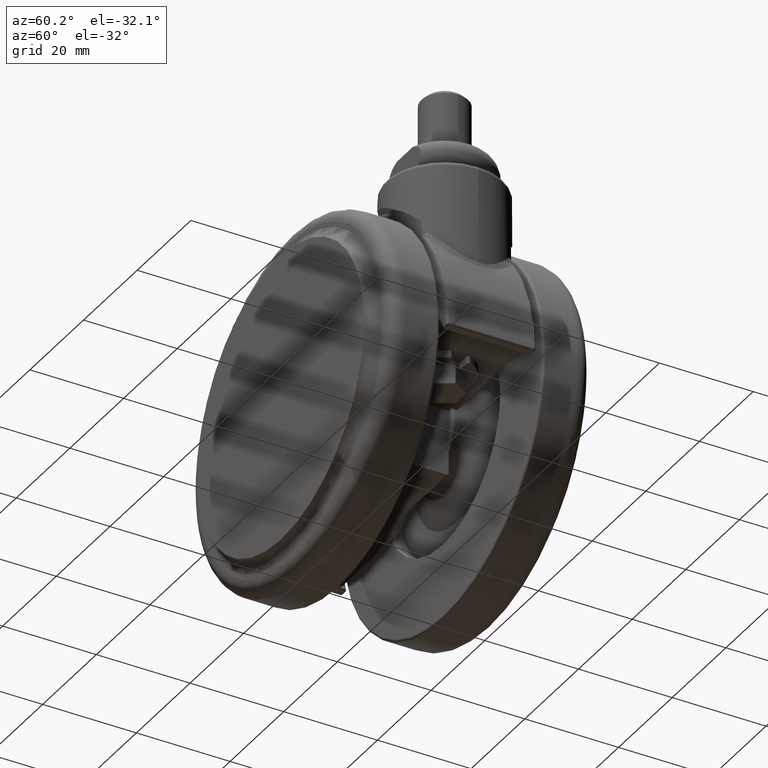
[diagram: clean part render]
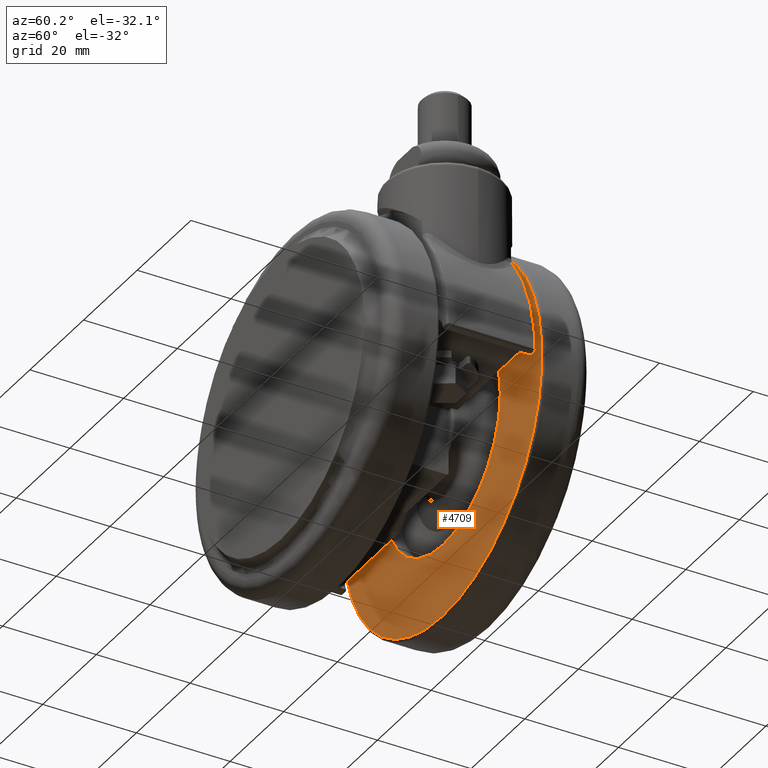
[diagram: same view with one face highlighted and labeled with its STEP entity id]
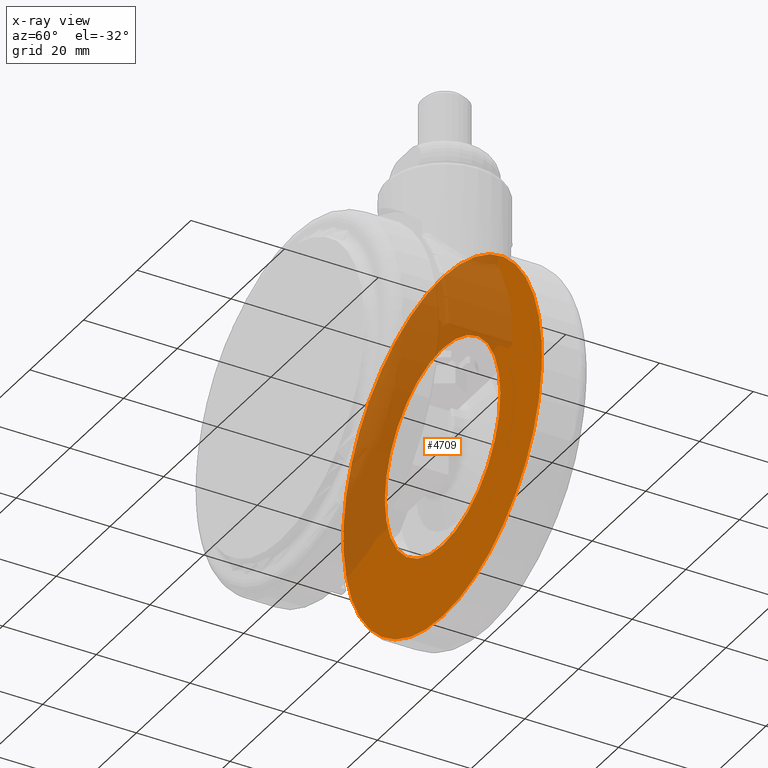
[diagram: x-ray of the same camera — body ghosted, the highlighted face saturated]
A machine part, auxiliary view. The second image highlights one B-rep face of the part: STEP entity #4709.
The next image is the same camera in x-ray: the body ghosted, the highlighted face saturated — about 44% of this face is hidden behind the body in this view.
In plain terms, the highlighted planar face has unit normal (-0, -1, 0).
Its self-contained STEP definition (entity closure, byte-faithful):
#141 = CARTESIAN_POINT ( 'NONE',  ( -20.00000000000000000, 11.00000000000000000, -40.50000000000000000 ) ) ;
#266 = ORIENTED_EDGE ( 'NONE', *, *, #7000, .T. ) ;
#566 = AXIS2_PLACEMENT_3D ( 'NONE', #3687, #8433, #4382 ) ;
#668 = AXIS2_PLACEMENT_3D ( 'NONE', #141, #4882, #827 ) ;
#671 = CARTESIAN_POINT ( 'NONE',  ( -20.00000000000000000, 11.00000000000000000, -40.50000000000000000 ) ) ;
#824 = CARTESIAN_POINT ( 'NONE',  ( -20.00000000000000000, 11.00000000000000000, -40.50000000000000000 ) ) ;
#827 = DIRECTION ( 'NONE',  ( 0.0000000000000000000, 0.0000000000000000000, -1.000000000000000000 ) ) ;
#1039 = CIRCLE ( 'NONE', #2121, 21.50000000000000000 ) ;
#1131 = FACE_BOUND ( 'NONE', #7510, .T. ) ;
#1353 = DIRECTION ( 'NONE',  ( 0.0000000000000000000, 0.0000000000000000000, -1.000000000000000000 ) ) ;
#1503 = DIRECTION ( 'NONE',  ( 0.0000000000000000000, 0.0000000000000000000, -1.000000000000000000 ) ) ;
#2121 = AXIS2_PLACEMENT_3D ( 'NONE', #671, #5394, #1353 ) ;
#2186 = EDGE_LOOP ( 'NONE', ( #266, #6662 ) ) ;
#2300 = VERTEX_POINT ( 'NONE', #6337 ) ;
#2706 = VERTEX_POINT ( 'NONE', #3770 ) ;
#2927 = FACE_OUTER_BOUND ( 'NONE', #2186, .T. ) ;
#3113 = EDGE_CURVE ( 'NONE', #2300, #8426, #1039, .T. ) ;
#3487 = VERTEX_POINT ( 'NONE', #5816 ) ;
#3604 = CIRCLE ( 'NONE', #668, 37.00000000000000000 ) ;
#3687 = CARTESIAN_POINT ( 'NONE',  ( -20.00000000000000000, 11.00000000000000000, -40.50000000000000000 ) ) ;
#3770 = CARTESIAN_POINT ( 'NONE',  ( -20.00000000000000400, 11.00000000000000000, -3.500000000000003100 ) ) ;
#3811 = ORIENTED_EDGE ( 'NONE', *, *, #4376, .F. ) ;
#3925 = DIRECTION ( 'NONE',  ( -1.505161159488250100E-015, -1.000000000000000000, 0.0000000000000000000 ) ) ;
#4376 = EDGE_CURVE ( 'NONE', #8426, #2300, #7988, .T. ) ;
#4382 = DIRECTION ( 'NONE',  ( 0.0000000000000000000, 0.0000000000000000000, -1.000000000000000000 ) ) ;
#4541 = EDGE_CURVE ( 'NONE', #2706, #3487, #7582, .T. ) ;
#4709 = ADVANCED_FACE ( 'NONE', ( #1131, #2927 ), #7982, .T. ) ;
#4882 = DIRECTION ( 'NONE',  ( -1.505161159488250100E-015, -1.000000000000000000, 0.0000000000000000000 ) ) ;
#5394 = DIRECTION ( 'NONE',  ( -1.505161159488250100E-015, -1.000000000000000000, 0.0000000000000000000 ) ) ;
#5543 = DIRECTION ( 'NONE',  ( -1.505161159488250100E-015, -1.000000000000000000, 0.0000000000000000000 ) ) ;
#5718 = AXIS2_PLACEMENT_3D ( 'NONE', #824, #5543, #1503 ) ;
#5816 = CARTESIAN_POINT ( 'NONE',  ( -20.00000000000000000, 11.00000000000000000, -77.50000000000000000 ) ) ;
#5967 = CARTESIAN_POINT ( 'NONE',  ( -57.00000000000000000, 11.00000000000000000, -40.50000000000000000 ) ) ;
#6337 = CARTESIAN_POINT ( 'NONE',  ( -20.00000000000000000, 11.00000000000000000, -62.00000000000000000 ) ) ;
#6530 = ORIENTED_EDGE ( 'NONE', *, *, #3113, .F. ) ;
#6662 = ORIENTED_EDGE ( 'NONE', *, *, #4541, .T. ) ;
#6909 = AXIS2_PLACEMENT_3D ( 'NONE', #5967, #3925, #8659 ) ;
#7000 = EDGE_CURVE ( 'NONE', #3487, #2706, #3604, .T. ) ;
#7119 = CARTESIAN_POINT ( 'NONE',  ( -19.99999999999998200, 11.00000000000000000, -19.00000000000000400 ) ) ;
#7510 = EDGE_LOOP ( 'NONE', ( #6530, #3811 ) ) ;
#7582 = CIRCLE ( 'NONE', #566, 37.00000000000000000 ) ;
#7982 = PLANE ( 'NONE',  #6909 ) ;
#7988 = CIRCLE ( 'NONE', #5718, 21.50000000000000000 ) ;
#8426 = VERTEX_POINT ( 'NONE', #7119 ) ;
#8433 = DIRECTION ( 'NONE',  ( -1.505161159488250100E-015, -1.000000000000000000, 0.0000000000000000000 ) ) ;
#8659 = DIRECTION ( 'NONE',  ( 0.0000000000000000000, 0.0000000000000000000, 1.000000000000000000 ) ) ;